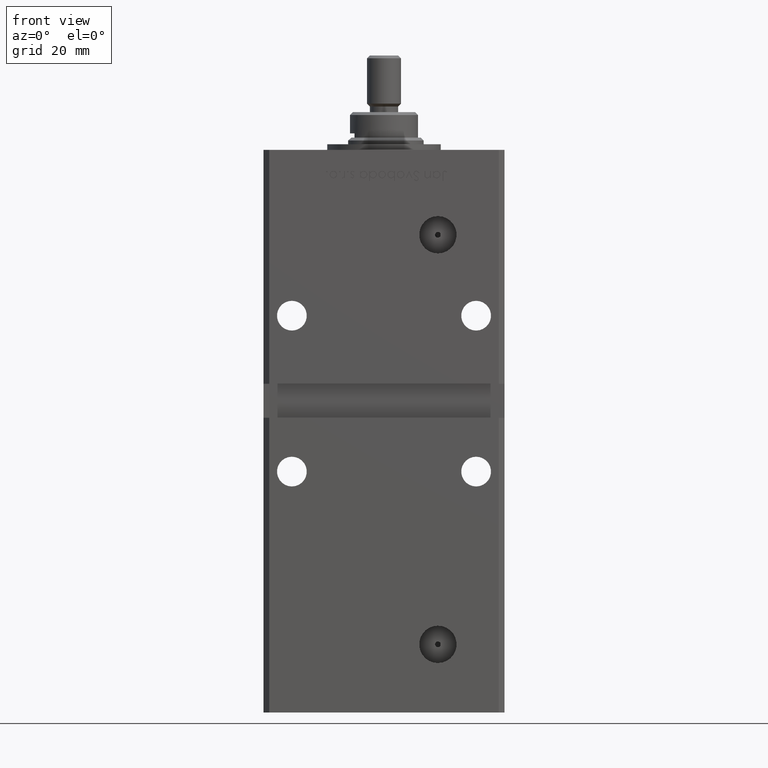
[diagram: clean part render]
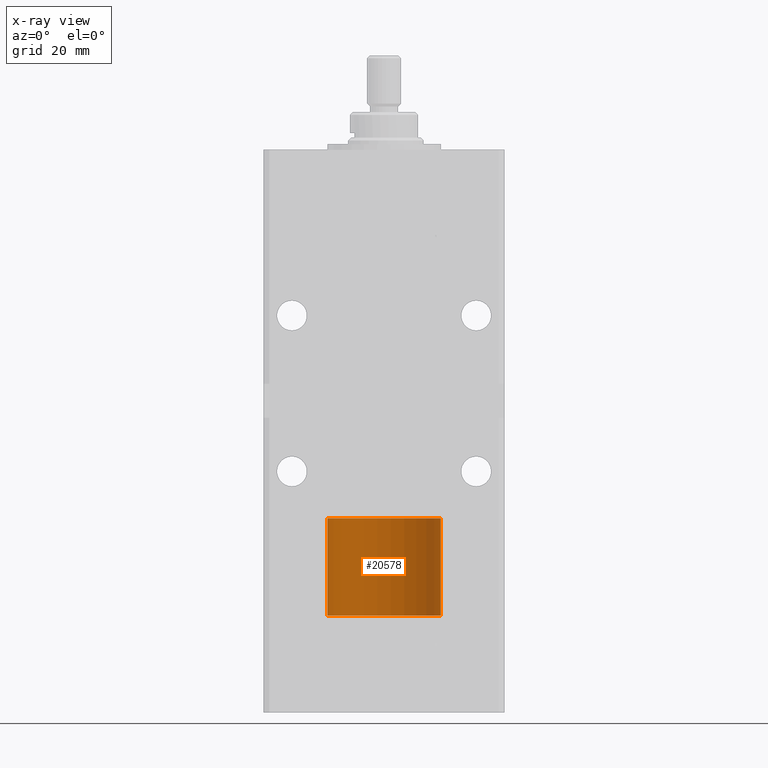
[diagram: x-ray — body ghosted, one internal face saturated and labeled with its STEP entity id]
A machine part, front view, then the same camera in x-ray: the body is ghosted and one INTERNAL B-rep face — a face not visible from any outside direction — is saturated and labeled: STEP entity #20578.
In plain terms, the highlighted cylindrical surface (partial cylindrical patch) has radius 20 mm, axis along (-0, -0, -1).
Its self-contained STEP definition (entity closure, byte-faithful):
#23 = CYLINDRICAL_SURFACE ( 'NONE', #24913, 20.00000000000000000 ) ;
#2133 = ORIENTED_EDGE ( 'NONE', *, *, #4097, .T. ) ;
#4097 = EDGE_CURVE ( 'NONE', #16982, #43910, #49666, .T. ) ;
#4807 = EDGE_CURVE ( 'NONE', #16982, #44925, #40977, .T. ) ;
#5852 = EDGE_CURVE ( 'NONE', #44925, #27589, #26928, .T. ) ;
#6302 = ORIENTED_EDGE ( 'NONE', *, *, #43223, .T. ) ;
#6793 = DIRECTION ( 'NONE',  ( -0.000000000000000000, -0.000000000000000000, -1.000000000000000000 ) ) ;
#10472 = DIRECTION ( 'NONE',  ( 0.000000000000000000, 0.000000000000000000, 1.000000000000000000 ) ) ;
#11147 = VECTOR ( 'NONE', #24672, 1000.000000000000000 ) ;
#12671 = ORIENTED_EDGE ( 'NONE', *, *, #4807, .F. ) ;
#14796 = CARTESIAN_POINT ( 'NONE',  ( -20.00000000000000000, 0.000000000000000000, 0.000000000000000000 ) ) ;
#16396 = CARTESIAN_POINT ( 'NONE',  ( 20.00000000000000000, 2.449293598294706513E-15, 34.25000000000000000 ) ) ;
#16982 = VERTEX_POINT ( 'NONE', #53391 ) ;
#17557 = CARTESIAN_POINT ( 'NONE',  ( 0.000000000000000000, 0.000000000000000000, 34.25000000000000000 ) ) ;
#20379 = CARTESIAN_POINT ( 'NONE',  ( 0.000000000000000000, 0.000000000000000000, 34.25000000000000000 ) ) ;
#20578 = ADVANCED_FACE ( 'NONE', ( #49507 ), #23, .T. ) ;
#24672 = DIRECTION ( 'NONE',  ( -0.000000000000000000, -0.000000000000000000, -1.000000000000000000 ) ) ;
#24913 = AXIS2_PLACEMENT_3D ( 'NONE', #20379, #37149, #37430 ) ;
#25570 = DIRECTION ( 'NONE',  ( 1.000000000000000000, 0.000000000000000000, 0.000000000000000000 ) ) ;
#26928 = LINE ( 'NONE', #48055, #41946 ) ;
#27543 = CARTESIAN_POINT ( 'NONE',  ( 0.000000000000000000, 0.000000000000000000, 0.000000000000000000 ) ) ;
#27589 = VERTEX_POINT ( 'NONE', #14796 ) ;
#28419 = CIRCLE ( 'NONE', #46856, 20.00000000000000000 ) ;
#31374 = ORIENTED_EDGE ( 'NONE', *, *, #5852, .F. ) ;
#31406 = DIRECTION ( 'NONE',  ( 1.000000000000000000, 0.000000000000000000, 0.000000000000000000 ) ) ;
#31595 = EDGE_LOOP ( 'NONE', ( #12671, #2133, #6302, #31374 ) ) ;
#32338 = CARTESIAN_POINT ( 'NONE',  ( 20.00000000000000000, 2.449293598294706513E-15, 0.000000000000000000 ) ) ;
#34084 = DIRECTION ( 'NONE',  ( 0.000000000000000000, 0.000000000000000000, 1.000000000000000000 ) ) ;
#37149 = DIRECTION ( 'NONE',  ( -0.000000000000000000, -0.000000000000000000, -1.000000000000000000 ) ) ;
#37430 = DIRECTION ( 'NONE',  ( -1.000000000000000000, 0.000000000000000000, 0.000000000000000000 ) ) ;
#40977 = CIRCLE ( 'NONE', #42770, 20.00000000000000000 ) ;
#41946 = VECTOR ( 'NONE', #6793, 1000.000000000000000 ) ;
#42770 = AXIS2_PLACEMENT_3D ( 'NONE', #17557, #34084, #25570 ) ;
#43223 = EDGE_CURVE ( 'NONE', #43910, #27589, #28419, .T. ) ;
#43910 = VERTEX_POINT ( 'NONE', #32338 ) ;
#44888 = CARTESIAN_POINT ( 'NONE',  ( -20.00000000000000000, 0.000000000000000000, 34.25000000000000000 ) ) ;
#44925 = VERTEX_POINT ( 'NONE', #44888 ) ;
#46856 = AXIS2_PLACEMENT_3D ( 'NONE', #27543, #10472, #31406 ) ;
#48055 = CARTESIAN_POINT ( 'NONE',  ( -20.00000000000000000, 0.000000000000000000, 34.25000000000000000 ) ) ;
#49507 = FACE_OUTER_BOUND ( 'NONE', #31595, .T. ) ;
#49666 = LINE ( 'NONE', #16396, #11147 ) ;
#53391 = CARTESIAN_POINT ( 'NONE',  ( 20.00000000000000000, 2.449293598294706513E-15, 34.25000000000000000 ) ) ;